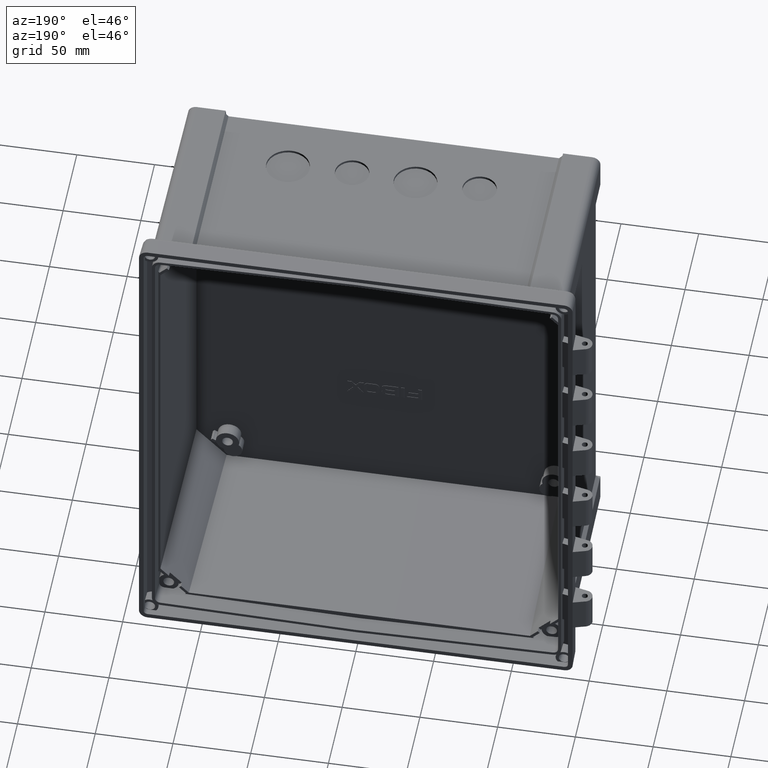
[diagram: clean part render]
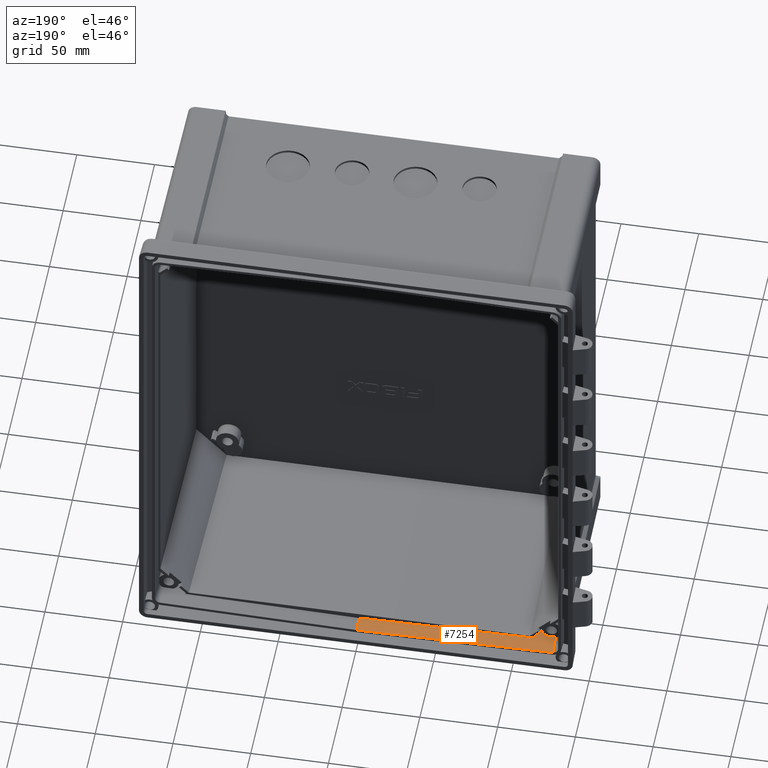
[diagram: same view with one face highlighted and labeled with its STEP entity id]
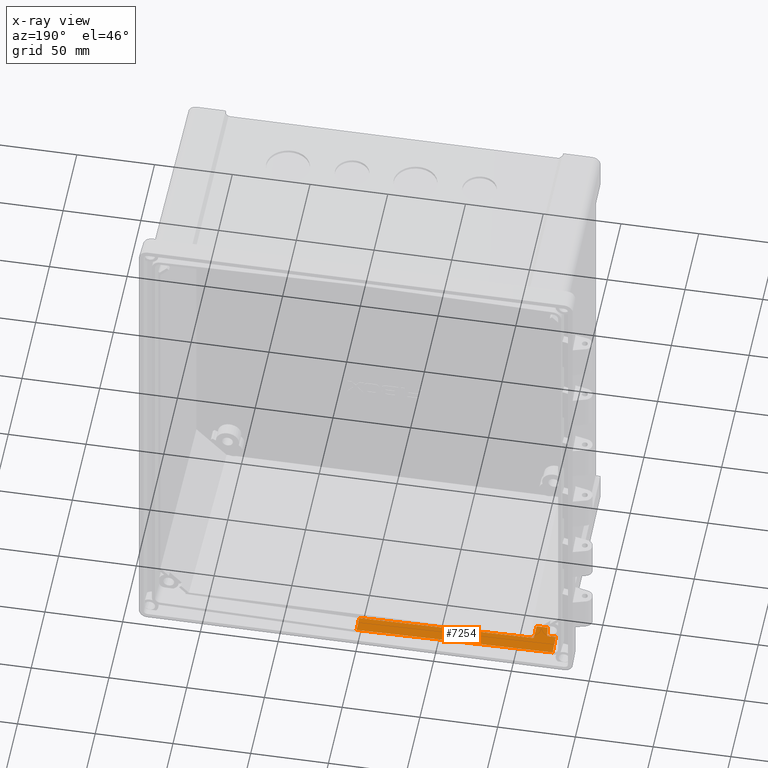
[diagram: x-ray of the same camera — body ghosted, the highlighted face saturated]
A machine part, auxiliary view. The second image highlights one B-rep face of the part: STEP entity #7254.
The next image is the same camera in x-ray: the body ghosted, the highlighted face saturated — about 0% of this face is hidden behind the body in this view.
In plain terms, the highlighted planar face has unit normal (0.0174, 0.0349, 0.9992).
Its self-contained STEP definition (entity closure, byte-faithful):
#31=DIRECTION('',(-9.998476951587E-1,5.140857026430E-10,1.745240630390E-2));
#32=VECTOR('',#31,7.213895563877E0);
#33=CARTESIAN_POINT('',(-1.121596795734E2,-2.300000000107E1,-1.536064117410E2));
#34=LINE('',#33,#32);
#51=CARTESIAN_POINT('',(-1.193724764260E2,-2.299999999736E1,-1.534805119046E2));
#52=CARTESIAN_POINT('',(-1.194684979843E2,-2.214194284511E1,-1.535088044225E2));
#53=CARTESIAN_POINT('',(-1.196628883919E2,-2.046816673852E1,-1.535638697776E2));
#54=CARTESIAN_POINT('',(-1.199627043689E2,-1.808954733696E1,-1.536417123435E2));
#55=CARTESIAN_POINT('',(-1.201710862574E2,-1.658236976413E1,-1.536907148413E2));
#56=CARTESIAN_POINT('',(-1.202780062750E2,-1.584933531856E1,-1.537144505716E2));
#71=DIRECTION('',(-9.998476951519E-1,-4.573411032574E-10,1.745240669466E-2));
#72=VECTOR('',#71,5.466605161313E0);
#73=CARTESIAN_POINT('',(-1.202780062750E2,-1.584933531856E1,-1.537144505716E2));
#74=LINE('',#73,#72);
#119=DIRECTION('',(3.487898821153E-2,-9.988036078701E-1,3.427548813679E-2));
#120=VECTOR('',#119,1.336532548930E1);
#121=CARTESIAN_POINT('',(-1.262099478761E2,-2.500000001988E0,
-1.540771482104E2));
#122=LINE('',#121,#120);
#199=DIRECTION('',(9.998476951570E-1,-1.323175686638E-11,-1.745240640112E-2));
#200=VECTOR('',#199,1.262291731905E2);
#201=CARTESIAN_POINT('',(-1.262099478761E2,-2.500000001988E0,
-1.540771482104E2));
#202=LINE('',#201,#200);
#3834=CARTESIAN_POINT('',(-1.262099478761E2,-2.500000001988E0,
-1.540771482104E2));
#3836=CARTESIAN_POINT('',(-1.257437788459E2,-1.584933532106E1,
-1.536190451551E2));
#3967=DIRECTION('',(-9.998476951565E-1,3.198823721908E-11,1.745240643256E-2));
#3968=VECTOR('',#3967,1.122139639442E2);
#3969=CARTESIAN_POINT('',(0.E0,-1.284933532822E1,-1.559186892472E2));
#3970=LINE('',#3969,#3968);
#3991=DIRECTION('',(3.661908964203E-3,-9.993861685358E-1,3.484073136483E-2));
#3992=VECTOR('',#3991,1.015689930081E1);
#3993=CARTESIAN_POINT('',(-1.121968732140E2,-1.284933532463E1,
-1.539602855411E2));
#3994=LINE('',#3993,#3992);
#3995=DIRECTION('',(0.E0,-9.993906416278E-1,3.490480521053E-2));
#3996=VECTOR('',#3995,1.035564562392E1);
#3997=CARTESIAN_POINT('',(0.E0,-2.500000003658E0,-1.562801510406E2));
#3998=LINE('',#3997,#3996);
#6100=VERTEX_POINT('',#3834);
#6103=VERTEX_POINT('',#3836);
#6476=CARTESIAN_POINT('',(-1.202780062705E2,-1.584933532200E1,
-1.537144505711E2));
#6478=VERTEX_POINT('',#6476);
#6479=VERTEX_POINT('',#51);
#6492=CARTESIAN_POINT('',(0.E0,-2.500000003658E0,-1.562801510406E2));
#6493=VERTEX_POINT('',#6492);
#6494=CARTESIAN_POINT('',(0.E0,-1.284933532822E1,-1.559186892472E2));
#6495=VERTEX_POINT('',#6494);
#6496=CARTESIAN_POINT('',(-1.121968732140E2,-1.284933532463E1,
-1.539602855411E2));
#6497=VERTEX_POINT('',#6496);
#6498=CARTESIAN_POINT('',(-1.121596795734E2,-2.300000000107E1,
-1.536064117410E2));
#6499=VERTEX_POINT('',#6498);
#7234=CARTESIAN_POINT('',(-6.310497393051E1,-1.274791835110E1,
-1.548207299285E2));
#7235=DIRECTION('',(1.744177490346E-2,3.489949669672E-2,9.992386149557E-1));
#7236=DIRECTION('',(0.E0,-9.993906415865E-1,3.490480639234E-2));
#7237=AXIS2_PLACEMENT_3D('',#7234,#7235,#7236);
#7238=PLANE('',#7237);
#7240=ORIENTED_EDGE('',*,*,#7239,.T.);
#7242=ORIENTED_EDGE('',*,*,#7241,.T.);
#7244=ORIENTED_EDGE('',*,*,#7243,.T.);
#7246=ORIENTED_EDGE('',*,*,#7245,.T.);
#7247=ORIENTED_EDGE('',*,*,#7178,.T.);
#7248=ORIENTED_EDGE('',*,*,#7195,.T.);
#7249=ORIENTED_EDGE('',*,*,#7208,.T.);
#7251=ORIENTED_EDGE('',*,*,#7250,.F.);
#7252=EDGE_LOOP('',(#7240,#7242,#7244,#7246,#7247,#7248,#7249,#7251));
#7253=FACE_OUTER_BOUND('',#7252,.F.);
#7254=ADVANCED_FACE('',(#7253),#7238,.T.);
#57=B_SPLINE_CURVE_WITH_KNOTS('',3,(#51,#52,#53,#54,#55,#56),.UNSPECIFIED.,.F.,
.F.,(4,1,1,4),(0.E0,3.333333333333E-1,6.666666666667E-1,1.E0),.UNSPECIFIED.);
#7178=EDGE_CURVE('',#6499,#6479,#34,.T.);
#7195=EDGE_CURVE('',#6479,#6478,#57,.T.);
#7208=EDGE_CURVE('',#6478,#6103,#74,.T.);
#7239=EDGE_CURVE('',#6100,#6493,#202,.T.);
#7241=EDGE_CURVE('',#6493,#6495,#3998,.T.);
#7243=EDGE_CURVE('',#6495,#6497,#3970,.T.);
#7245=EDGE_CURVE('',#6497,#6499,#3994,.T.);
#7250=EDGE_CURVE('',#6100,#6103,#122,.T.);